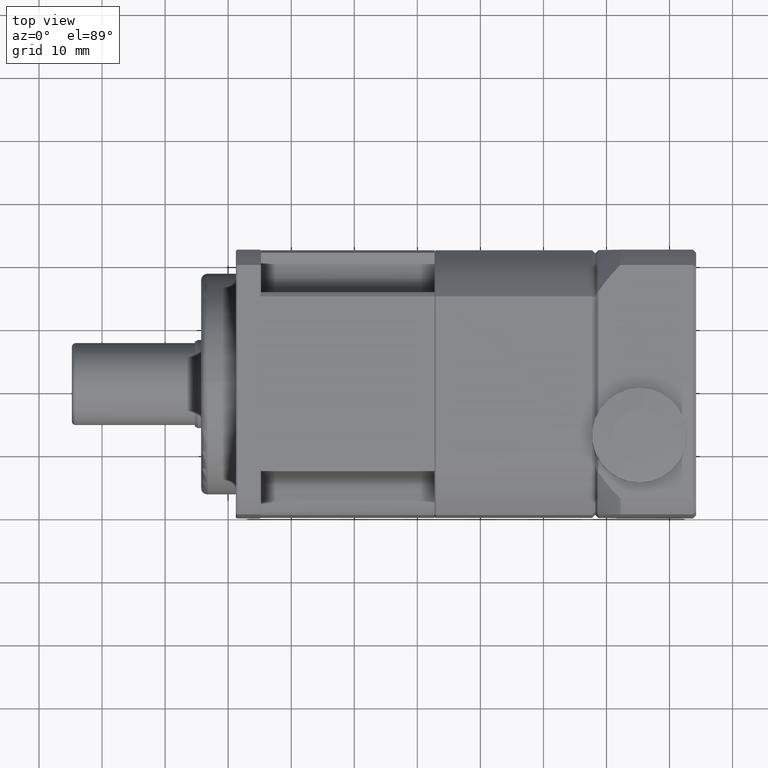
[diagram: clean part render]
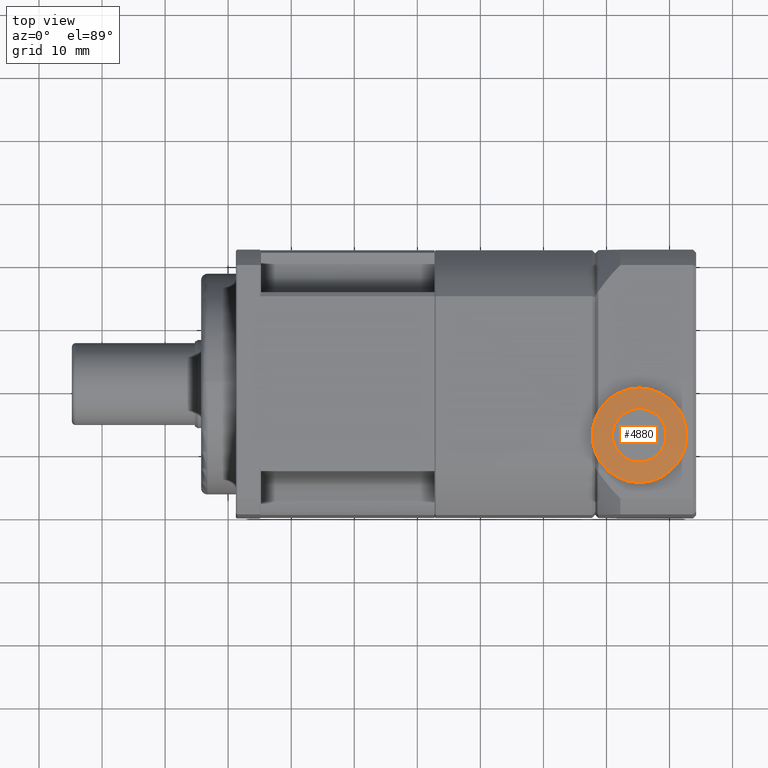
[diagram: same view with one face highlighted and labeled with its STEP entity id]
A machine part, top view. The second image highlights one B-rep face of the part: STEP entity #4880.
In plain terms, the highlighted conical surface has half-angle 84.726 deg.
Its self-contained STEP definition (entity closure, byte-faithful):
#175=CONICAL_SURFACE('',#5306,5.875,84.7261040426483);
#887=FACE_BOUND('',#1463,.T.);
#1093=FACE_OUTER_BOUND('',#1462,.T.);
#1462=EDGE_LOOP('',(#3623));
#1463=EDGE_LOOP('',(#3624));
#1880=CIRCLE('',#5305,4.25);
#1881=CIRCLE('',#5307,7.5);
#2246=VERTEX_POINT('',#7889);
#2247=VERTEX_POINT('',#7892);
#2760=EDGE_CURVE('',#2246,#2246,#1880,.T.);
#2761=EDGE_CURVE('',#2247,#2247,#1881,.T.);
#3623=ORIENTED_EDGE('',*,*,#2760,.T.);
#3624=ORIENTED_EDGE('',*,*,#2761,.F.);
#4880=ADVANCED_FACE('',(#1093,#887),#175,.T.);
#5305=AXIS2_PLACEMENT_3D('',#7890,#6224,#6225);
#5306=AXIS2_PLACEMENT_3D('',#7891,#6226,#6227);
#5307=AXIS2_PLACEMENT_3D('',#7893,#6228,#6229);
#6224=DIRECTION('center_axis',(-5.25165833380835E-16,-8.23923538602162E-15,
-1.));
#6225=DIRECTION('ref_axis',(-1.,6.24100869421394E-16,5.2516583338083E-16));
#6226=DIRECTION('center_axis',(-5.25165833380835E-16,-8.23923538602162E-15,
-1.));
#6227=DIRECTION('ref_axis',(6.24100869421389E-16,1.,-8.23416358663639E-15));
#6228=DIRECTION('center_axis',(-5.25165833380835E-16,-8.23923538602162E-15,
-1.));
#6229=DIRECTION('ref_axis',(-1.,6.24100869421394E-16,5.2516583338083E-16));
#7889=CARTESIAN_POINT('',(25.2159950143863,-43.1174851319122,-4.84775529413358));
#7890=CARTESIAN_POINT('Origin',(25.2159950143863,-47.3674851319122,-4.84775529413355));
#7891=CARTESIAN_POINT('Origin',(25.2159950143863,-47.3674851319122,-4.99775529413355));
#7892=CARTESIAN_POINT('',(25.2159950143863,-39.8674851319122,-5.14775529413361));
#7893=CARTESIAN_POINT('Origin',(25.2159950143863,-47.3674851319122,-5.14775529413355));